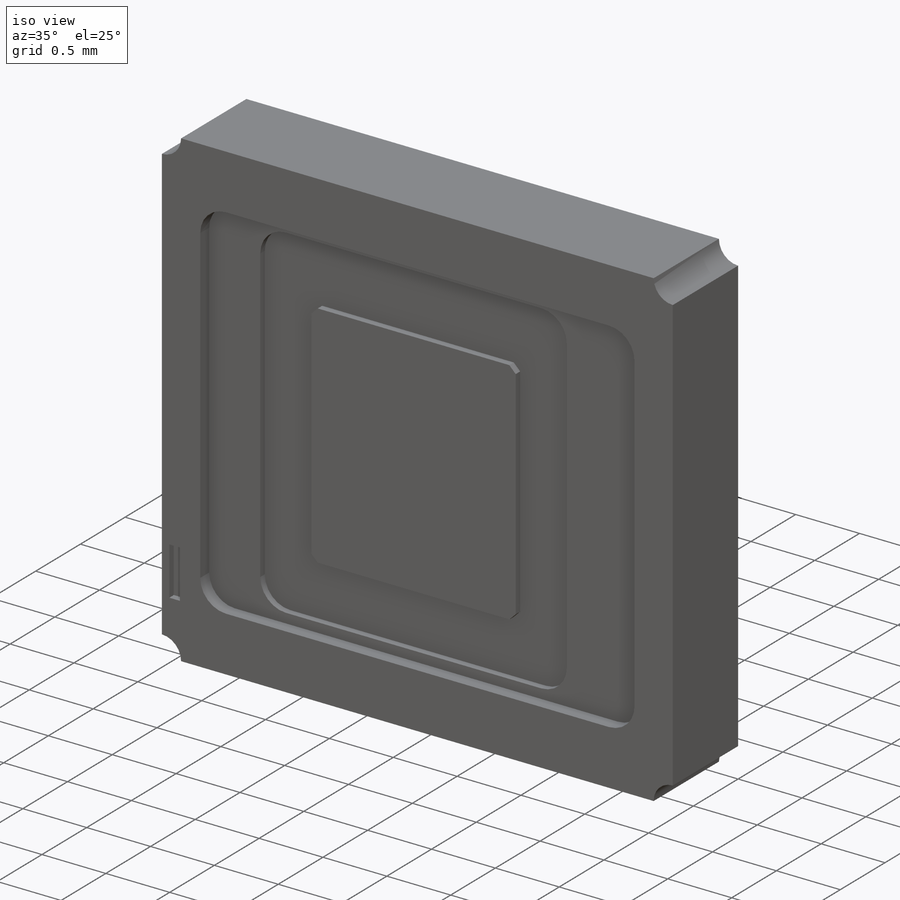
[diagram: iso view]
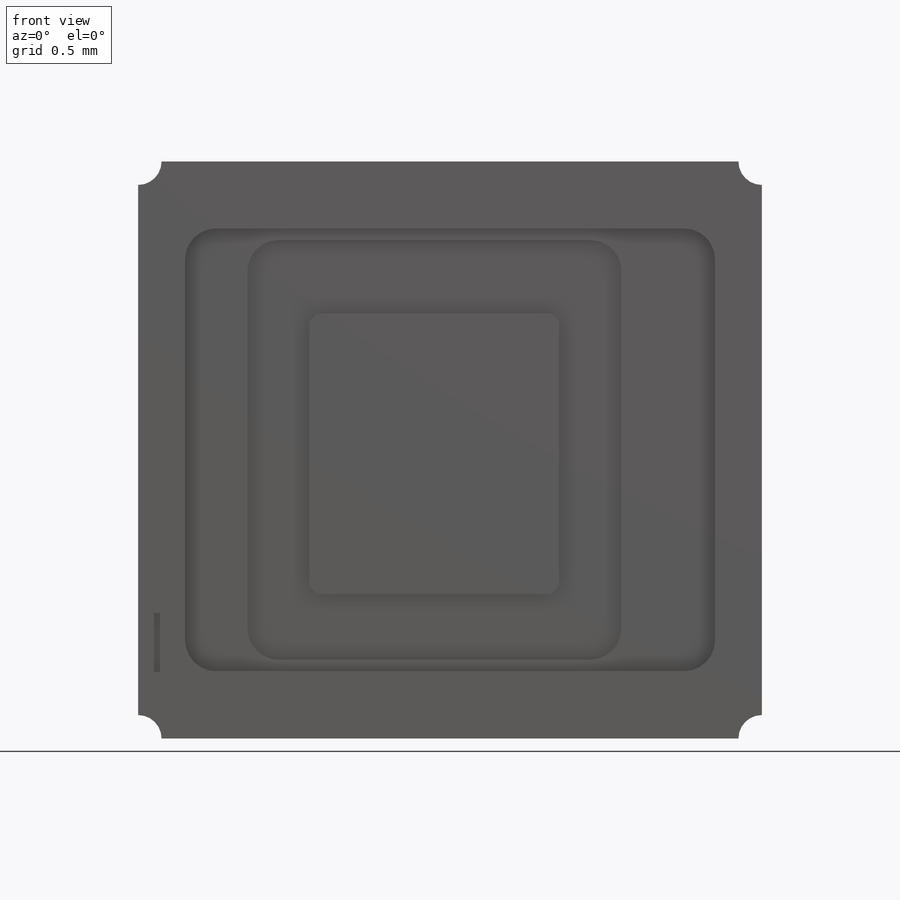
[diagram: front view]
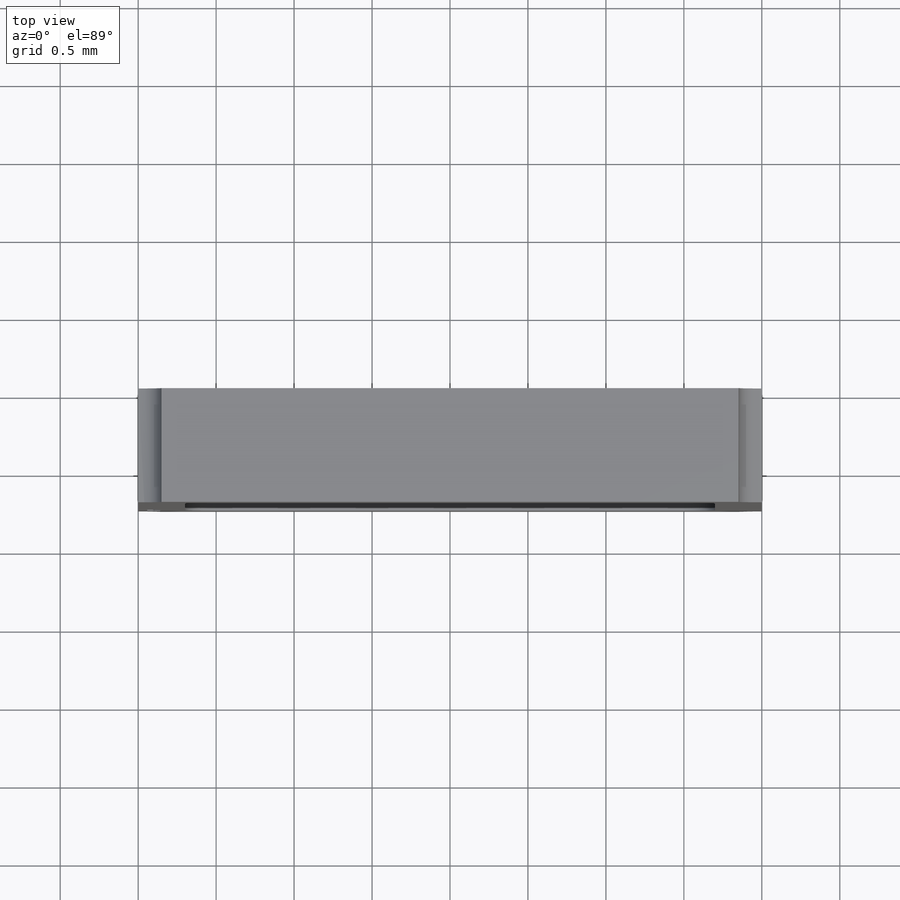
[diagram: top view]
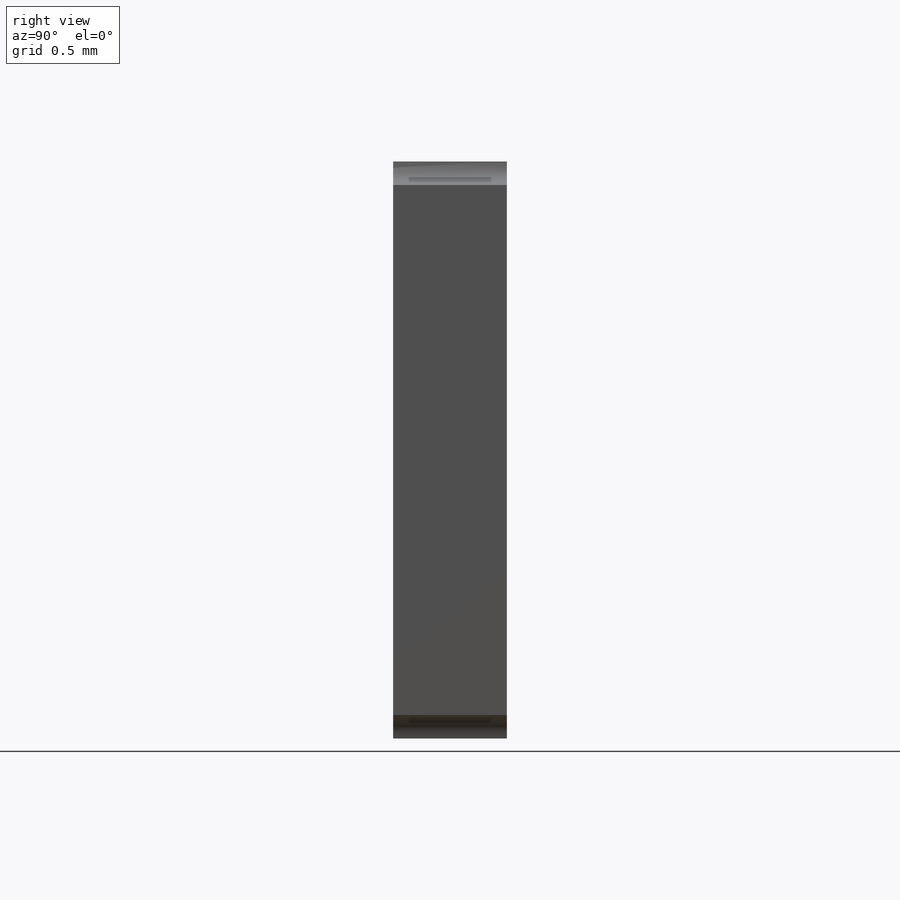
[diagram: right view]
SOLIDWORKS PART (.sldprt)
format: sldprt  version: not decoded by parser v0  size: 268,800 bytes
history: native  units: mm
features: sketch x6, cut_extrude x4, extrude x2, plane x2, mirror x2, fillet x2, material x1, chamfer x1 (+13 scaffold rows collapsed)
feature tree (33):
  scaffold x13  (default folders/planes/origin — collapsed)
  material  "Material <not specified>"
  sketch  "Sketch1"  dims[D1=4.0mm D2=3.7mm]
  extrude  "Boss-Extrude1"  Depth=0.73mm
  sketch  "Sketch2"  dims[D1=0.15mm]
  cut_extrude  "Cut-Extrude1"  Depth=0.73mm
  plane  "Plane3"  Offset=1.85mm
  plane  "Plane4"  Offset=2mm
  mirror  "Mirror1"
  mirror  "Mirror2"
  sketch  "Sketch3"  dims[D1=2.84mm D2=3.4mm]
  cut_extrude  "Cut-Extrude2"  Depth=0.1mm
  fillet  "Fillet1"  Radius=0.2mm
  sketch  "Sketch4"
  cut_extrude  "Cut-Extrude3"  Depth=0.05mm
  sketch  "Sketch6"  dims[D1=2.69mm D2=0.6mm D3=0.4mm]
  cut_extrude  "Cut-Extrude4"  Depth=0.05mm
  fillet  "Fillet2"  Radius=0.2mm
  sketch  "Sketch7"  dims[D1=1.8mm D2=1.6mm]
  extrude  "Boss-Extrude2"  Depth=0.05mm
  chamfer  "Chamfer1"  Distance=0.05mm Angle=45deg
decode coverage: 14 of 17 modeling features carry decoded parameters
note: suppression state not decoded; provenance and decode notes live in map.json
